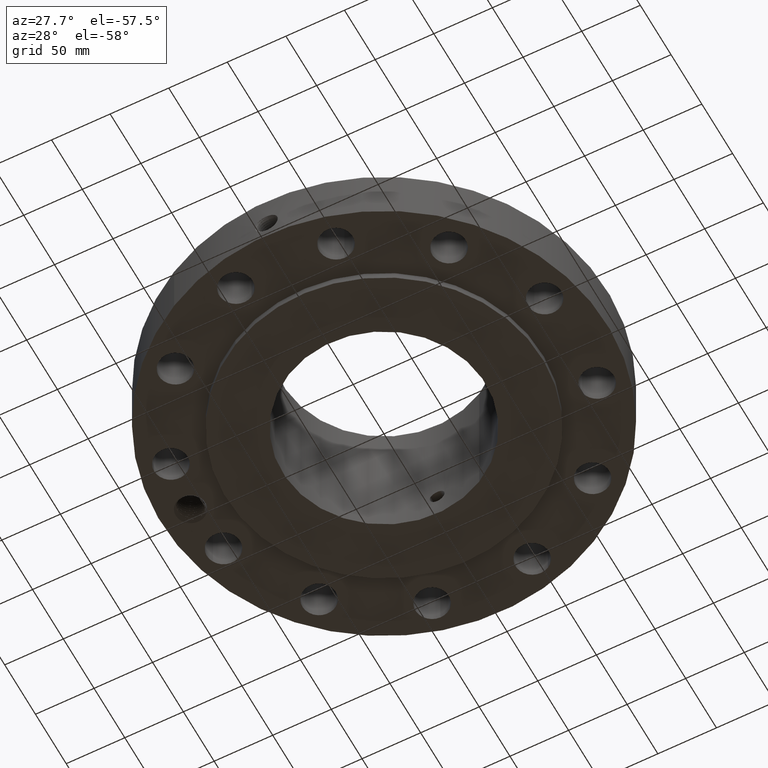
[diagram: clean part render]
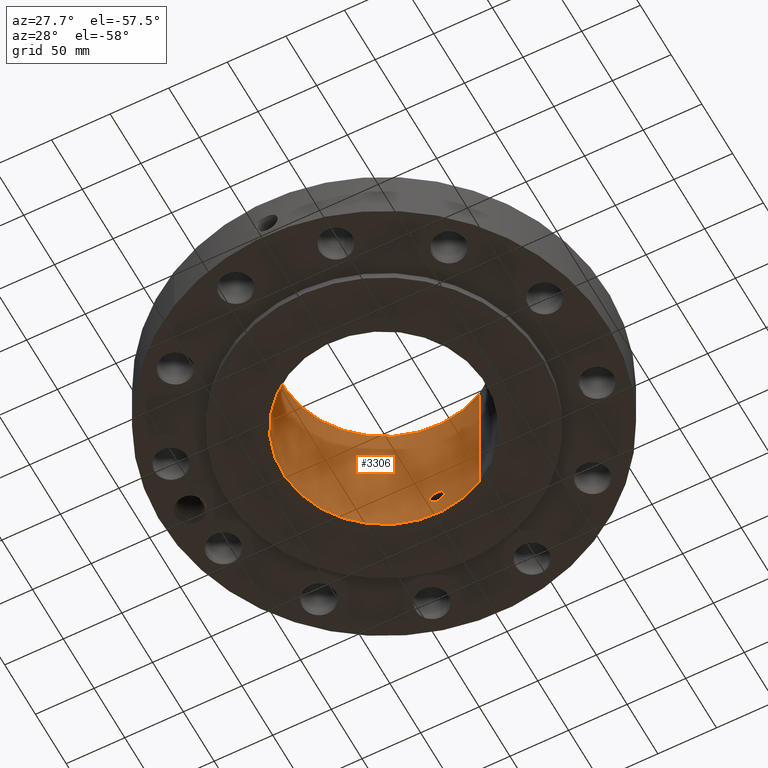
[diagram: same view with one face highlighted and labeled with its STEP entity id]
A machine part, auxiliary view. The second image highlights one B-rep face of the part: STEP entity #3306.
In plain terms, the highlighted cylindrical surface (partial cylindrical patch) has radius 86.5251 mm, axis along (0, 0, -1).
Its self-contained STEP definition (entity closure, byte-faithful):
#2477=AXIS2_PLACEMENT_3D('Circle Axis2P3D',#2475,#2476,$) ;
#3183=AXIS2_PLACEMENT_3D('Cylinder Axis2P3D',#3180,#3181,#3182) ;
#3255=AXIS2_PLACEMENT_3D('Circle Axis2P3D',#3253,#3254,$) ;
#2470=CARTESIAN_POINT('Vertex',(1.63316309726,2.98948499709,-1.06301669129E-014)) ;
#2472=CARTESIAN_POINT('Vertex',(-1.63316309726,-2.98948499709,-1.06301669129E-014)) ;
#2475=CARTESIAN_POINT('Axis2P3D Location',(0.,0.,0.)) ;
#3180=CARTESIAN_POINT('Axis2P3D Location',(0.,0.,2.43500000001)) ;
#3189=CARTESIAN_POINT('Vertex',(1.63316309726,2.98948499709,4.87000000002)) ;
#3191=CARTESIAN_POINT('Vertex',(-1.63316309726,-2.98948499709,4.87000000002)) ;
#3194=CARTESIAN_POINT('Line Origine',(1.63316309726,2.98948499709,2.43500000001)) ;
#3199=CARTESIAN_POINT('Line Origine',(-1.63316309726,-2.98948499709,2.43500000001)) ;
#3253=CARTESIAN_POINT('Axis2P3D Location',(0.,0.,4.87000000002)) ;
#3265=CARTESIAN_POINT('Control Point',(0.219395640473,3.39942756991,1.05985638466)) ;
#3266=CARTESIAN_POINT('Control Point',(0.20692209081,3.40023260027,1.08268906416)) ;
#3267=CARTESIAN_POINT('Control Point',(0.191480270846,3.40117174988,1.10389541997)) ;
#3268=CARTESIAN_POINT('Control Point',(0.173350437024,3.40217234365,1.12296437253)) ;
#3269=CARTESIAN_POINT('Control Point',(0.112173204408,3.4050649443,1.17242329016)) ;
#3270=CARTESIAN_POINT('Control Point',(0.0350454156914,3.40694423699,1.19595853392)) ;
#3271=CARTESIAN_POINT('Control Point',(-0.0194930743929,3.40708579679,1.19761226368)) ;
#3272=CARTESIAN_POINT('Control Point',(-0.124058529558,3.40502079393,1.17250448594)) ;
#3273=CARTESIAN_POINT('Control Point',(-0.203091449687,3.40074014384,1.099671246)) ;
#3274=CARTESIAN_POINT('Control Point',(-0.232089622921,3.39862929034,1.05350095983)) ;
#3275=CARTESIAN_POINT('Control Point',(-0.255820043588,3.39688687915,0.975327448789)) ;
#3276=CARTESIAN_POINT('Control Point',(-0.248318916528,3.39743715578,0.895895312158)) ;
#3277=CARTESIAN_POINT('Control Point',(-0.242084279086,3.39790142147,0.869274865394)) ;
#3278=CARTESIAN_POINT('Control Point',(-0.232337683478,3.39859230345,0.843833866166)) ;
#3279=CARTESIAN_POINT('Control Point',(-0.219395640473,3.39942756991,0.820143615352)) ;
#3280=CARTESIAN_POINT('Vertex',(0.219395640473,3.39942756991,1.05985638466)) ;
#3282=CARTESIAN_POINT('Vertex',(-0.219395640473,3.39942756991,0.820143615352)) ;
#3286=CARTESIAN_POINT('Control Point',(-0.219395640473,3.39942756991,0.820143615352)) ;
#3287=CARTESIAN_POINT('Control Point',(-0.20692209081,3.40023260027,0.797310935847)) ;
#3288=CARTESIAN_POINT('Control Point',(-0.191480270845,3.40117174988,0.776104580041)) ;
#3289=CARTESIAN_POINT('Control Point',(-0.173350437028,3.40217234365,0.757035627479)) ;
#3290=CARTESIAN_POINT('Control Point',(-0.112173204411,3.4050649443,0.707576709849)) ;
#3291=CARTESIAN_POINT('Control Point',(-0.0350454156944,3.40694423699,0.684041466088)) ;
#3292=CARTESIAN_POINT('Control Point',(0.0194930743886,3.40708579679,0.682387736327)) ;
#3293=CARTESIAN_POINT('Control Point',(0.124058529554,3.40502079393,0.707495514067)) ;
#3294=CARTESIAN_POINT('Control Point',(0.203091449683,3.40074014384,0.780328754008)) ;
#3295=CARTESIAN_POINT('Control Point',(0.232089622919,3.39862929034,0.826499040173)) ;
#3296=CARTESIAN_POINT('Control Point',(0.255820043584,3.39688687915,0.904672551203)) ;
#3297=CARTESIAN_POINT('Control Point',(0.248318916531,3.39743715578,0.98410468782)) ;
#3298=CARTESIAN_POINT('Control Point',(0.242084279077,3.39790142147,1.01072513464)) ;
#3299=CARTESIAN_POINT('Control Point',(0.232337683472,3.39859230345,1.03616613385)) ;
#3300=CARTESIAN_POINT('Control Point',(0.219395640473,3.39942756991,1.05985638466)) ;
#2476=DIRECTION('Axis2P3D Direction',(0.,0.,-0.0393700787402)) ;
#3181=DIRECTION('Axis2P3D Direction',(0.,0.,-0.0393700787402)) ;
#3182=DIRECTION('Axis2P3D XDirection',(-0.0188750212049,-0.0345504945626,0.)) ;
#3195=DIRECTION('Vector Direction',(0.,0.,-0.0393700787402)) ;
#3200=DIRECTION('Vector Direction',(0.,0.,-0.0393700787402)) ;
#3254=DIRECTION('Axis2P3D Direction',(0.,0.,-0.0393700787402)) ;
#3196=VECTOR('Line Direction',#3195,0.0393700787402) ;
#3201=VECTOR('Line Direction',#3200,0.0393700787402) ;
#3259=ORIENTED_EDGE('',*,*,#3257,.F.) ;
#3260=ORIENTED_EDGE('',*,*,#3203,.T.) ;
#3261=ORIENTED_EDGE('',*,*,#2479,.T.) ;
#3262=ORIENTED_EDGE('',*,*,#3198,.F.) ;
#3303=ORIENTED_EDGE('',*,*,#3284,.F.) ;
#3304=ORIENTED_EDGE('',*,*,#3301,.F.) ;
#3305=FACE_BOUND('',#3302,.T.) ;
#3306=ADVANCED_FACE('PartBody',(#3263,#3305),#3184,.F.) ;
#3264=B_SPLINE_CURVE_WITH_KNOTS('',5,(#3265,#3266,#3267,#3268,#3269,#3270,#3271,#3272,#3273,#3274,#3275,#3276,#3277,#3278,#3279),.UNSPECIFIED.,.F.,.U.,(6,3,3,3,6),(0.,4.67514848241,14.0207936783,23.3707117952,28.2214539132),.UNSPECIFIED.) ;
#3285=B_SPLINE_CURVE_WITH_KNOTS('',5,(#3286,#3287,#3288,#3289,#3290,#3291,#3292,#3293,#3294,#3295,#3296,#3297,#3298,#3299,#3300),.UNSPECIFIED.,.F.,.U.,(6,3,3,3,6),(0.,4.67514848248,14.0207936784,23.3707117952,28.2214539109),.UNSPECIFIED.) ;
#2478=CIRCLE('generated circle',#2477,3.40650000001) ;
#3256=CIRCLE('generated circle',#3255,3.40650000001) ;
#3184=CYLINDRICAL_SURFACE('generated cylinder',#3183,3.40650000001) ;
#2479=EDGE_CURVE('',#2473,#2471,#2478,.T.) ;
#3198=EDGE_CURVE('',#3190,#2471,#3197,.T.) ;
#3203=EDGE_CURVE('',#3192,#2473,#3202,.T.) ;
#3257=EDGE_CURVE('',#3192,#3190,#3256,.T.) ;
#3284=EDGE_CURVE('',#3281,#3283,#3264,.T.) ;
#3301=EDGE_CURVE('',#3283,#3281,#3285,.T.) ;
#3258=EDGE_LOOP('',(#3259,#3260,#3261,#3262)) ;
#3302=EDGE_LOOP('',(#3303,#3304)) ;
#3263=FACE_OUTER_BOUND('',#3258,.T.) ;
#3197=LINE('Line',#3194,#3196) ;
#3202=LINE('Line',#3199,#3201) ;
#2471=VERTEX_POINT('',#2470) ;
#2473=VERTEX_POINT('',#2472) ;
#3190=VERTEX_POINT('',#3189) ;
#3192=VERTEX_POINT('',#3191) ;
#3281=VERTEX_POINT('',#3280) ;
#3283=VERTEX_POINT('',#3282) ;